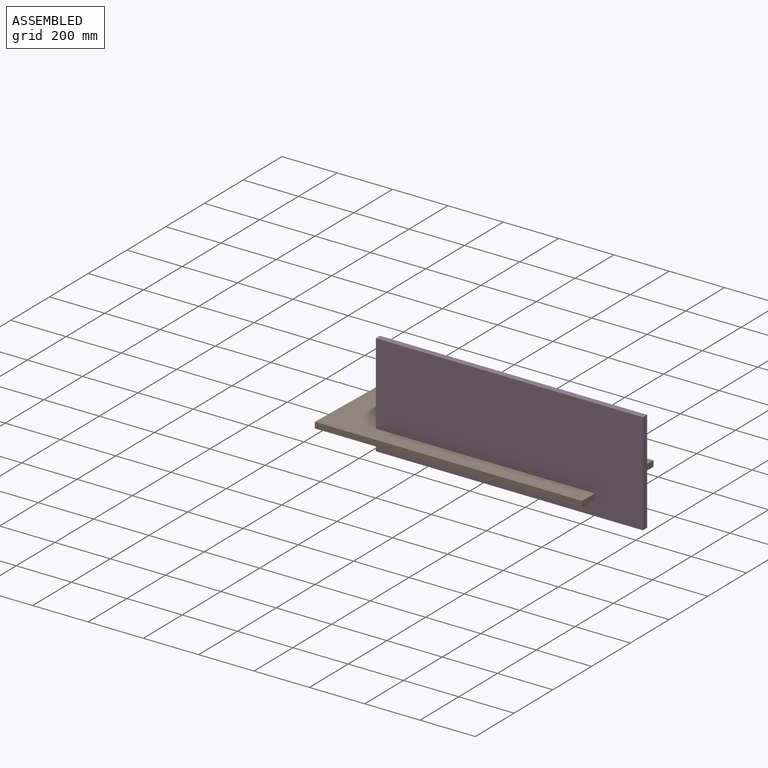
[diagram: assembled view]
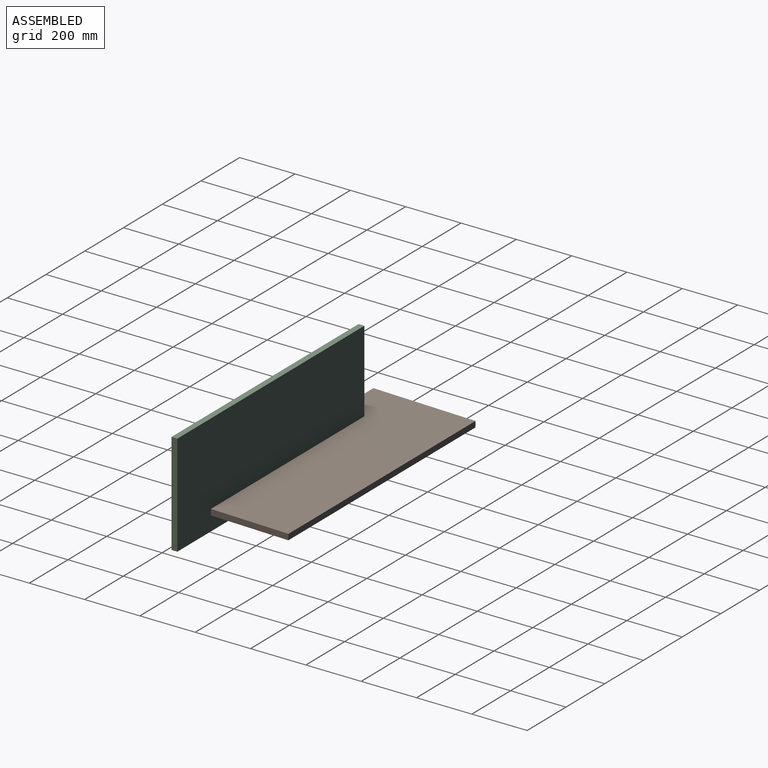
[diagram: assembled view, second angle]
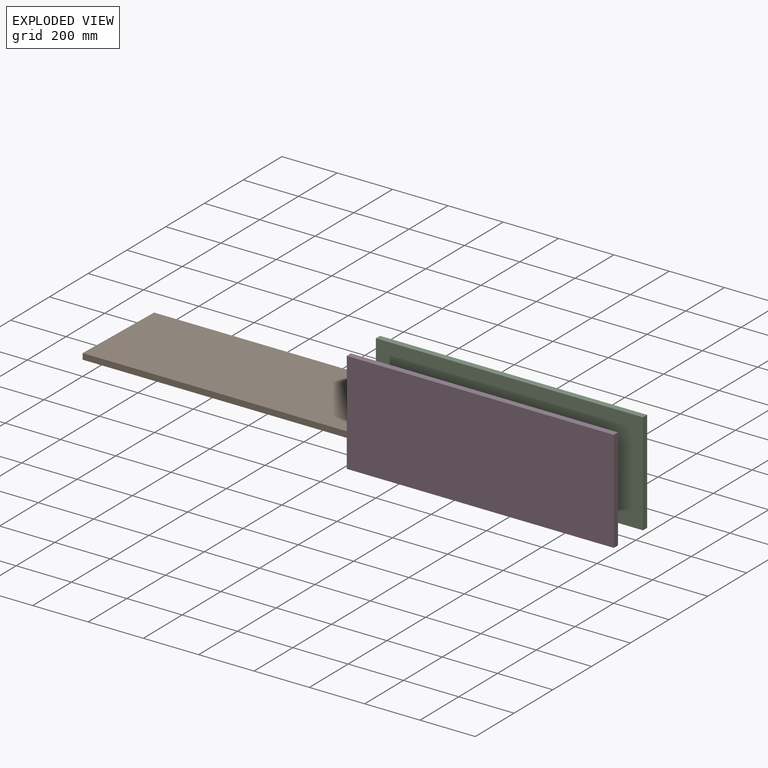
[diagram: exploded view]
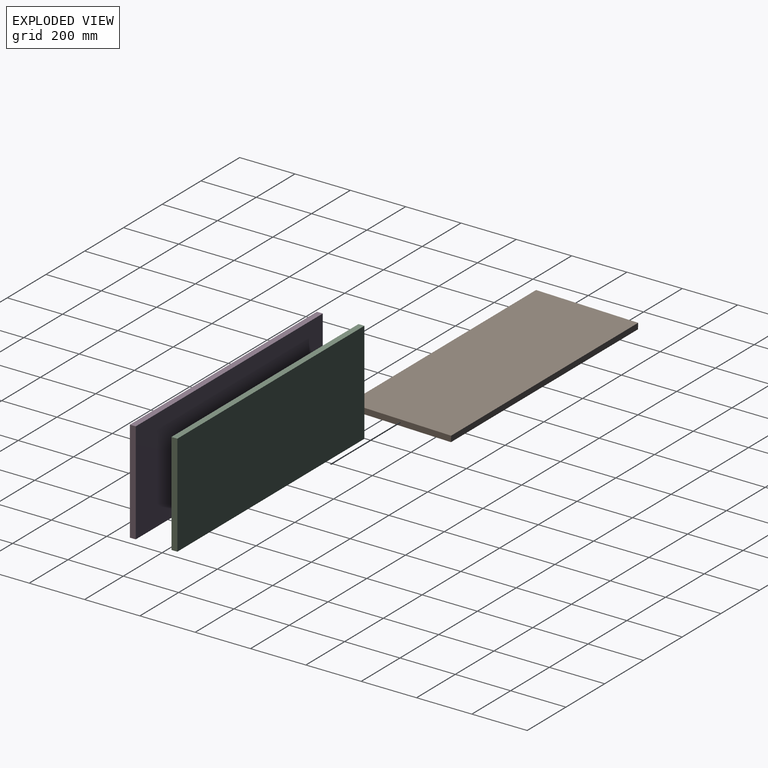
[diagram: exploded view, second angle]
ASSEMBLY  parts=4 mates=2
PART A: 6 faces, bbox 965.6x21.3x369.2 mm
  f0: plane 965.6x21.3mm, normal (0,0,1), area 20567.3mm2, adj f1,f2,f3,f4
  f1: plane 369.2x21.3mm, normal (-1,0,0), area 7864mm2, adj f0,f2,f4,f5
  f2: plane 965.6x369.2mm, normal (0,-1,0), area 356499.5mm2, adj f0,f1,f3,f5
  f3: plane 369.2x21.3mm, normal (1,0,0), area 7864mm2, adj f0,f2,f4,f5
  f4: plane 965.6x369.2mm, normal (0,1,0), area 356499.5mm2, adj f0,f1,f3,f5
  f5: plane 965.6x21.3mm, normal (0,0,-1), area 20567.3mm2, adj f1,f2,f3,f4
PART B: same geometry as A
PART C: same geometry as A
PART D: same geometry as A
PLACE A at identity
PLACE B rot(axis=(-1,0,0),91.3deg) t=(-173.27,69.11,-7359.31)mm
PLACE C at identity
PLACE D at identity
MATE fastened A.f2 <-> C.f2  axis (0,-1,0) through (1718.44,-3565.04,-3599.52)mm
MATE cylindrical C.f2 <-> D.f2  axis (0,-1,0) through (1718.44,-3565.04,-3599.52)mm
